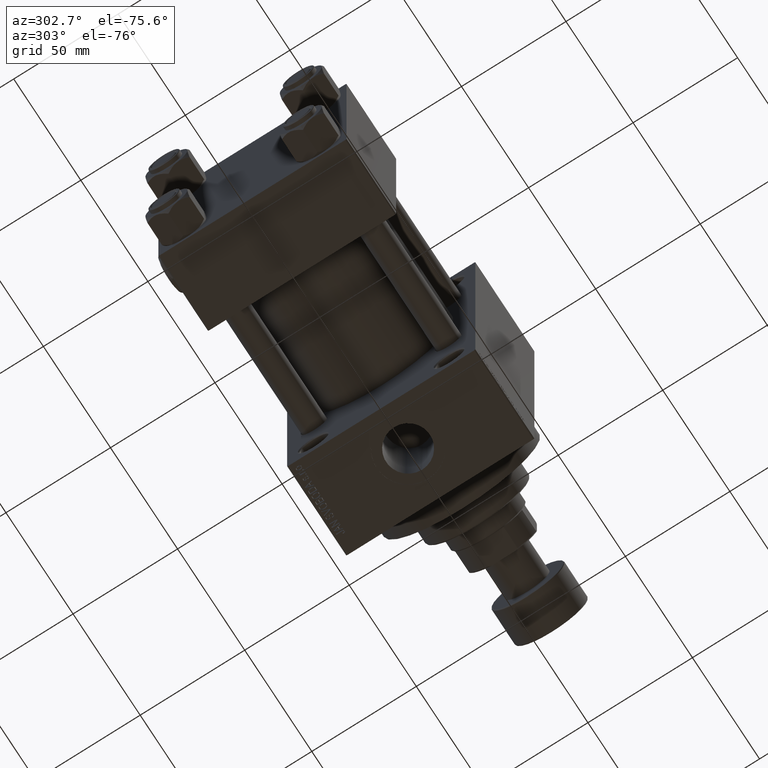
[diagram: clean part render]
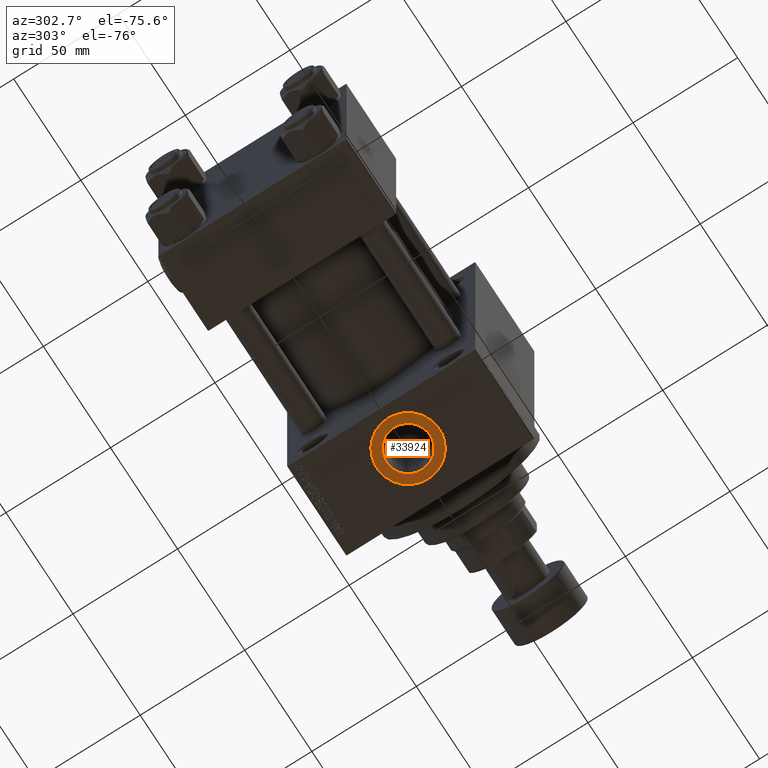
[diagram: same view with one face highlighted and labeled with its STEP entity id]
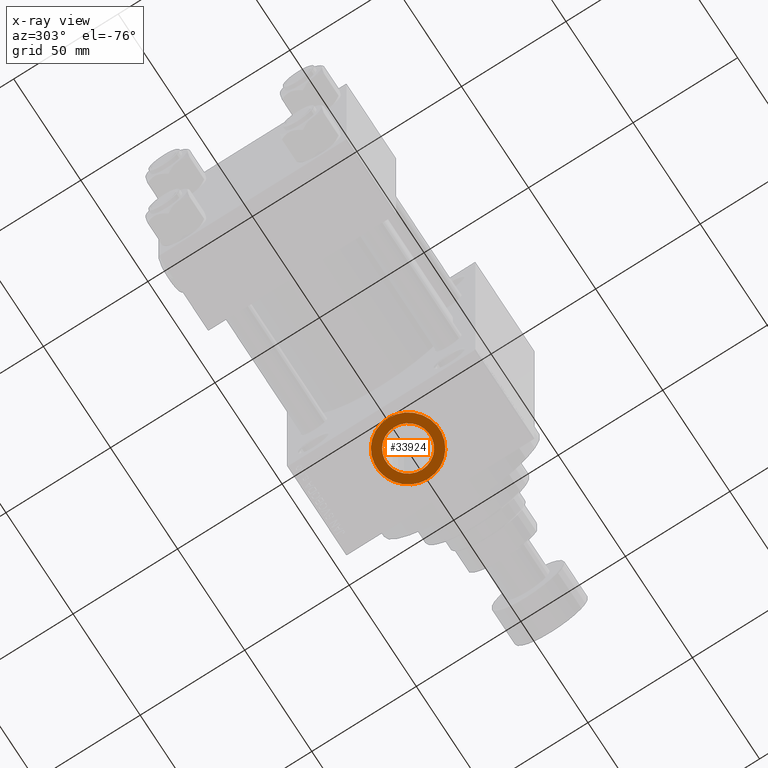
[diagram: x-ray of the same camera — body ghosted, the highlighted face saturated]
A machine part, auxiliary view. The second image highlights one B-rep face of the part: STEP entity #33924.
The next image is the same camera in x-ray: the body ghosted, the highlighted face saturated — about 0% of this face is hidden behind the body in this view.
In plain terms, the highlighted planar face has unit normal (0, 0, -1).
Its self-contained STEP definition (entity closure, byte-faithful):
#1458 = CARTESIAN_POINT ( 'NONE',  ( 126.4800000000000040, 1.283429845506425883E-15, -70.79999999999998295 ) ) ;
#1770 = EDGE_CURVE ( 'NONE', #24333, #47231, #44191, .T. ) ;
#5612 = FACE_OUTER_BOUND ( 'NONE', #29366, .T. ) ;
#8232 = DIRECTION ( 'NONE',  ( 0.000000000000000000, 0.000000000000000000, -1.000000000000000000 ) ) ;
#8273 = CARTESIAN_POINT ( 'NONE',  ( 116.0000000000000000, 0.000000000000000000, -70.79999999999998295 ) ) ;
#8983 = EDGE_CURVE ( 'NONE', #10390, #21300, #39464, .T. ) ;
#9849 = FACE_BOUND ( 'NONE', #38882, .T. ) ;
#10046 = AXIS2_PLACEMENT_3D ( 'NONE', #47894, #10621, #25396 ) ;
#10187 = CIRCLE ( 'NONE', #33362, 10.48000000000000398 ) ;
#10390 = VERTEX_POINT ( 'NONE', #1458 ) ;
#10621 = DIRECTION ( 'NONE',  ( 0.000000000000000000, 0.000000000000000000, -1.000000000000000000 ) ) ;
#15074 = CARTESIAN_POINT ( 'NONE',  ( 131.0000000000000000, 1.836970198721029589E-15, -70.79999999999998295 ) ) ;
#15829 = EDGE_CURVE ( 'NONE', #47231, #24333, #26807, .T. ) ;
#17087 = ORIENTED_EDGE ( 'NONE', *, *, #8983, .F. ) ;
#18212 = CARTESIAN_POINT ( 'NONE',  ( 105.5199999999999960, 0.000000000000000000, -70.79999999999998295 ) ) ;
#20187 = AXIS2_PLACEMENT_3D ( 'NONE', #20875, #43357, #27881 ) ;
#20875 = CARTESIAN_POINT ( 'NONE',  ( 116.0000000000000000, 0.000000000000000000, -70.79999999999998295 ) ) ;
#21300 = VERTEX_POINT ( 'NONE', #18212 ) ;
#23474 = CARTESIAN_POINT ( 'NONE',  ( 116.0000000000000000, 0.000000000000000000, -70.79999999999998295 ) ) ;
#24035 = ORIENTED_EDGE ( 'NONE', *, *, #44591, .F. ) ;
#24333 = VERTEX_POINT ( 'NONE', #15074 ) ;
#25109 = PLANE ( 'NONE',  #20187 ) ;
#25396 = DIRECTION ( 'NONE',  ( -1.000000000000000000, 0.000000000000000000, 0.000000000000000000 ) ) ;
#26700 = AXIS2_PLACEMENT_3D ( 'NONE', #8273, #27521, #31523 ) ;
#26807 = CIRCLE ( 'NONE', #10046, 15.00000000000000000 ) ;
#27521 = DIRECTION ( 'NONE',  ( 0.000000000000000000, 0.000000000000000000, -1.000000000000000000 ) ) ;
#27881 = DIRECTION ( 'NONE',  ( -1.000000000000000000, 0.000000000000000000, -0.000000000000000000 ) ) ;
#29050 = AXIS2_PLACEMENT_3D ( 'NONE', #45981, #34471, #30000 ) ;
#29366 = EDGE_LOOP ( 'NONE', ( #41715, #47618 ) ) ;
#30000 = DIRECTION ( 'NONE',  ( -1.000000000000000000, 0.000000000000000000, 0.000000000000000000 ) ) ;
#31483 = DIRECTION ( 'NONE',  ( -1.000000000000000000, 0.000000000000000000, 0.000000000000000000 ) ) ;
#31523 = DIRECTION ( 'NONE',  ( -1.000000000000000000, 0.000000000000000000, 0.000000000000000000 ) ) ;
#33362 = AXIS2_PLACEMENT_3D ( 'NONE', #23474, #8232, #31483 ) ;
#33924 = ADVANCED_FACE ( 'NONE', ( #9849, #5612 ), #25109, .T. ) ;
#34471 = DIRECTION ( 'NONE',  ( 0.000000000000000000, 0.000000000000000000, -1.000000000000000000 ) ) ;
#38882 = EDGE_LOOP ( 'NONE', ( #24035, #17087 ) ) ;
#39464 = CIRCLE ( 'NONE', #26700, 10.48000000000000398 ) ;
#41357 = CARTESIAN_POINT ( 'NONE',  ( 101.0000000000000000, 0.000000000000000000, -70.79999999999998295 ) ) ;
#41715 = ORIENTED_EDGE ( 'NONE', *, *, #15829, .T. ) ;
#43357 = DIRECTION ( 'NONE',  ( 0.000000000000000000, 0.000000000000000000, -1.000000000000000000 ) ) ;
#44191 = CIRCLE ( 'NONE', #29050, 15.00000000000000000 ) ;
#44591 = EDGE_CURVE ( 'NONE', #21300, #10390, #10187, .T. ) ;
#45981 = CARTESIAN_POINT ( 'NONE',  ( 116.0000000000000000, 0.000000000000000000, -70.79999999999998295 ) ) ;
#47231 = VERTEX_POINT ( 'NONE', #41357 ) ;
#47618 = ORIENTED_EDGE ( 'NONE', *, *, #1770, .T. ) ;
#47894 = CARTESIAN_POINT ( 'NONE',  ( 116.0000000000000000, 0.000000000000000000, -70.79999999999998295 ) ) ;